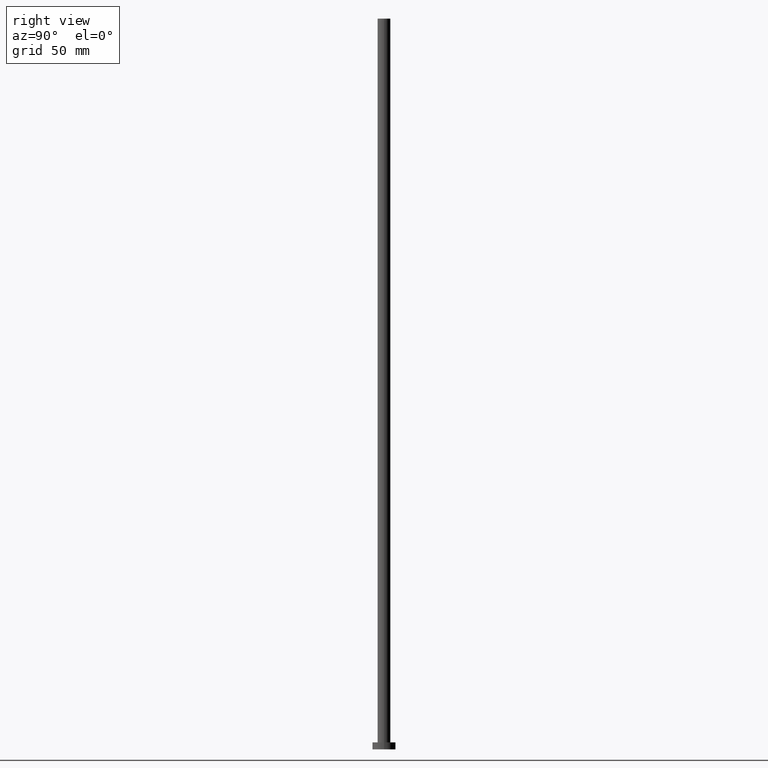
[diagram: clean part render]
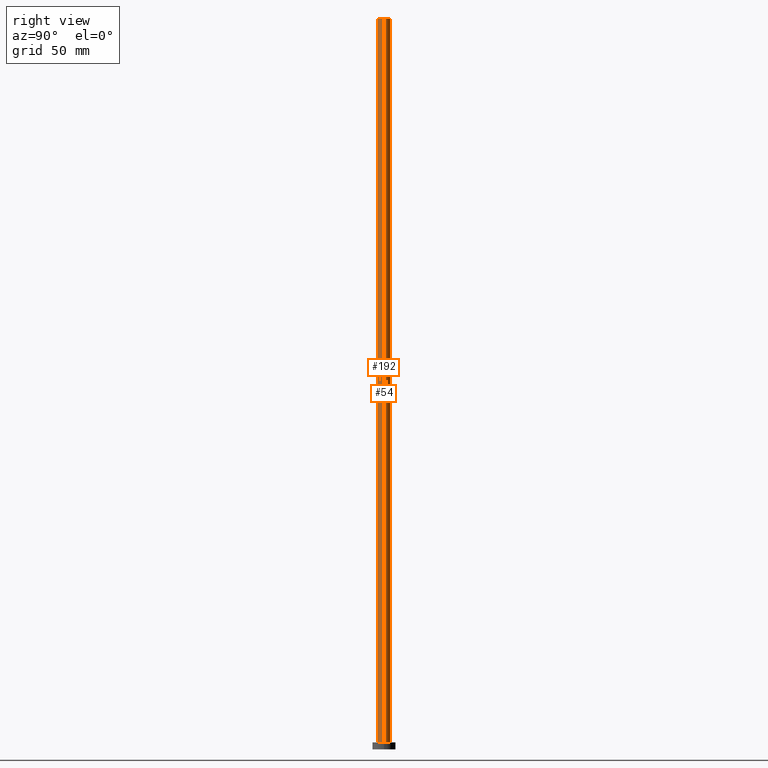
[diagram: same view with one multi-face feature highlighted, each face labeled with its STEP entity id]
A machine part, right view. The highlighted faces form ONE feature: a constant-radius fillet chain: 2 tangent blend faces with common blend radius 2.75 mm. The faces share edges in the B-rep.
Their STEP definitions:
[1] entity #192 (Cylinder):
#10 = CARTESIAN_POINT ( 'NONE',  ( 0.000000000000000000, 0.000000000000000000, 3.000000000000000000 ) ) ;
#14 = CYLINDRICAL_SURFACE ( 'NONE', #41, 2.750000000000000000 ) ;
#17 = LINE ( 'NONE', #57, #217 ) ;
#19 = EDGE_CURVE ( 'NONE', #186, #23, #108, .T. ) ;
#22 = DIRECTION ( 'NONE',  ( 0.000000000000000000, 0.000000000000000000, 1.000000000000000000 ) ) ;
#23 = VERTEX_POINT ( 'NONE', #147 ) ;
#25 = ORIENTED_EDGE ( 'NONE', *, *, #145, .T. ) ;
#26 = ORIENTED_EDGE ( 'NONE', *, *, #19, .T. ) ;
#27 = AXIS2_PLACEMENT_3D ( 'NONE', #10, #90, #179 ) ;
#32 = CARTESIAN_POINT ( 'NONE',  ( -2.750000000000000000, 0.000000000000000000, 315.0000000000000000 ) ) ;
#34 = CARTESIAN_POINT ( 'NONE',  ( 2.750000000000000000, 3.367778697655221012E-16, 3.000000000000000000 ) ) ;
#36 = DIRECTION ( 'NONE',  ( -1.000000000000000000, 0.000000000000000000, 0.000000000000000000 ) ) ;
#41 = AXIS2_PLACEMENT_3D ( 'NONE', #166, #137, #36 ) ;
#52 = CARTESIAN_POINT ( 'NONE',  ( 2.750000000000000000, 3.367778697655221012E-16, 315.0000000000000000 ) ) ;
#57 = CARTESIAN_POINT ( 'NONE',  ( 2.750000000000000000, 3.367778697655221012E-16, 315.0000000000000000 ) ) ;
#65 = ORIENTED_EDGE ( 'NONE', *, *, #220, .F. ) ;
#70 = VERTEX_POINT ( 'NONE', #52 ) ;
#74 = CIRCLE ( 'NONE', #27, 2.750000000000000000 ) ;
#86 = DIRECTION ( 'NONE',  ( -0.000000000000000000, -0.000000000000000000, -1.000000000000000000 ) ) ;
#90 = DIRECTION ( 'NONE',  ( 0.000000000000000000, 0.000000000000000000, 1.000000000000000000 ) ) ;
#102 = VECTOR ( 'NONE', #86, 1000.000000000000000 ) ;
#108 = LINE ( 'NONE', #172, #102 ) ;
#115 = DIRECTION ( 'NONE',  ( 1.000000000000000000, 0.000000000000000000, 0.000000000000000000 ) ) ;
#137 = DIRECTION ( 'NONE',  ( -0.000000000000000000, -0.000000000000000000, -1.000000000000000000 ) ) ;
#145 = EDGE_CURVE ( 'NONE', #23, #180, #74, .T. ) ;
#147 = CARTESIAN_POINT ( 'NONE',  ( -2.750000000000000000, 0.000000000000000000, 3.000000000000000000 ) ) ;
#160 = CARTESIAN_POINT ( 'NONE',  ( 0.000000000000000000, 0.000000000000000000, 315.0000000000000000 ) ) ;
#166 = CARTESIAN_POINT ( 'NONE',  ( 0.000000000000000000, 0.000000000000000000, 315.0000000000000000 ) ) ;
#172 = CARTESIAN_POINT ( 'NONE',  ( -2.750000000000000000, 0.000000000000000000, 315.0000000000000000 ) ) ;
#179 = DIRECTION ( 'NONE',  ( 1.000000000000000000, 0.000000000000000000, 0.000000000000000000 ) ) ;
#180 = VERTEX_POINT ( 'NONE', #34 ) ;
#186 = VERTEX_POINT ( 'NONE', #32 ) ;
#191 = EDGE_LOOP ( 'NONE', ( #65, #249, #26, #25 ) ) ;
#192 = ADVANCED_FACE ( 'NONE', ( #199 ), #14, .T. ) ;
#194 = AXIS2_PLACEMENT_3D ( 'NONE', #160, #22, #115 ) ;
#196 = EDGE_CURVE ( 'NONE', #186, #70, #230, .T. ) ;
#199 = FACE_OUTER_BOUND ( 'NONE', #191, .T. ) ;
#217 = VECTOR ( 'NONE', #255, 1000.000000000000000 ) ;
#220 = EDGE_CURVE ( 'NONE', #70, #180, #17, .T. ) ;
#230 = CIRCLE ( 'NONE', #194, 2.750000000000000000 ) ;
#249 = ORIENTED_EDGE ( 'NONE', *, *, #196, .F. ) ;
#255 = DIRECTION ( 'NONE',  ( -0.000000000000000000, -0.000000000000000000, -1.000000000000000000 ) ) ;
[2] entity #54 (Cylinder):
#5 = ORIENTED_EDGE ( 'NONE', *, *, #97, .T. ) ;
#9 = CARTESIAN_POINT ( 'NONE',  ( 0.000000000000000000, 0.000000000000000000, 3.000000000000000000 ) ) ;
#17 = LINE ( 'NONE', #57, #217 ) ;
#18 = ORIENTED_EDGE ( 'NONE', *, *, #112, .F. ) ;
#19 = EDGE_CURVE ( 'NONE', #186, #23, #108, .T. ) ;
#20 = ORIENTED_EDGE ( 'NONE', *, *, #19, .F. ) ;
#23 = VERTEX_POINT ( 'NONE', #147 ) ;
#32 = CARTESIAN_POINT ( 'NONE',  ( -2.750000000000000000, 0.000000000000000000, 315.0000000000000000 ) ) ;
#34 = CARTESIAN_POINT ( 'NONE',  ( 2.750000000000000000, 3.367778697655221012E-16, 3.000000000000000000 ) ) ;
#42 = CIRCLE ( 'NONE', #71, 2.750000000000000000 ) ;
#48 = DIRECTION ( 'NONE',  ( -1.000000000000000000, 0.000000000000000000, 0.000000000000000000 ) ) ;
#50 = DIRECTION ( 'NONE',  ( 0.000000000000000000, 0.000000000000000000, 1.000000000000000000 ) ) ;
#52 = CARTESIAN_POINT ( 'NONE',  ( 2.750000000000000000, 3.367778697655221012E-16, 315.0000000000000000 ) ) ;
#54 = ADVANCED_FACE ( 'NONE', ( #67 ), #69, .T. ) ;
#57 = CARTESIAN_POINT ( 'NONE',  ( 2.750000000000000000, 3.367778697655221012E-16, 315.0000000000000000 ) ) ;
#59 = EDGE_LOOP ( 'NONE', ( #18, #126, #5, #20 ) ) ;
#67 = FACE_OUTER_BOUND ( 'NONE', #59, .T. ) ;
#69 = CYLINDRICAL_SURFACE ( 'NONE', #122, 2.750000000000000000 ) ;
#70 = VERTEX_POINT ( 'NONE', #52 ) ;
#71 = AXIS2_PLACEMENT_3D ( 'NONE', #9, #50, #195 ) ;
#86 = DIRECTION ( 'NONE',  ( -0.000000000000000000, -0.000000000000000000, -1.000000000000000000 ) ) ;
#97 = EDGE_CURVE ( 'NONE', #180, #23, #42, .T. ) ;
#102 = VECTOR ( 'NONE', #86, 1000.000000000000000 ) ;
#105 = CARTESIAN_POINT ( 'NONE',  ( 0.000000000000000000, 0.000000000000000000, 315.0000000000000000 ) ) ;
#108 = LINE ( 'NONE', #172, #102 ) ;
#112 = EDGE_CURVE ( 'NONE', #70, #186, #238, .T. ) ;
#122 = AXIS2_PLACEMENT_3D ( 'NONE', #105, #226, #48 ) ;
#126 = ORIENTED_EDGE ( 'NONE', *, *, #220, .T. ) ;
#135 = AXIS2_PLACEMENT_3D ( 'NONE', #153, #151, #193 ) ;
#147 = CARTESIAN_POINT ( 'NONE',  ( -2.750000000000000000, 0.000000000000000000, 3.000000000000000000 ) ) ;
#151 = DIRECTION ( 'NONE',  ( 0.000000000000000000, 0.000000000000000000, 1.000000000000000000 ) ) ;
#153 = CARTESIAN_POINT ( 'NONE',  ( 0.000000000000000000, 0.000000000000000000, 315.0000000000000000 ) ) ;
#172 = CARTESIAN_POINT ( 'NONE',  ( -2.750000000000000000, 0.000000000000000000, 315.0000000000000000 ) ) ;
#180 = VERTEX_POINT ( 'NONE', #34 ) ;
#186 = VERTEX_POINT ( 'NONE', #32 ) ;
#193 = DIRECTION ( 'NONE',  ( 1.000000000000000000, 0.000000000000000000, 0.000000000000000000 ) ) ;
#195 = DIRECTION ( 'NONE',  ( 1.000000000000000000, 0.000000000000000000, 0.000000000000000000 ) ) ;
#217 = VECTOR ( 'NONE', #255, 1000.000000000000000 ) ;
#220 = EDGE_CURVE ( 'NONE', #70, #180, #17, .T. ) ;
#226 = DIRECTION ( 'NONE',  ( -0.000000000000000000, -0.000000000000000000, -1.000000000000000000 ) ) ;
#238 = CIRCLE ( 'NONE', #135, 2.750000000000000000 ) ;
#255 = DIRECTION ( 'NONE',  ( -0.000000000000000000, -0.000000000000000000, -1.000000000000000000 ) ) ;